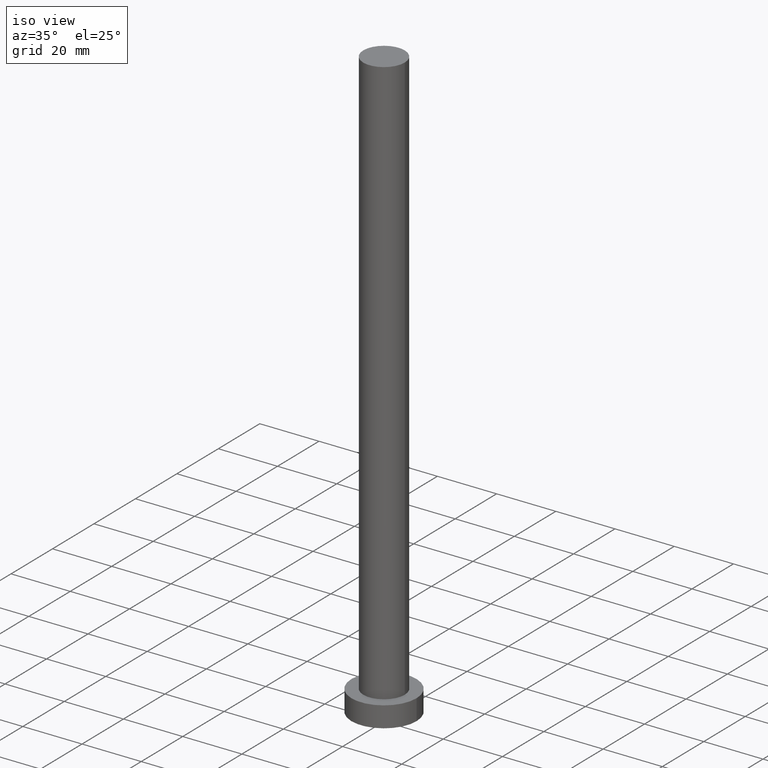
[diagram: clean part render]
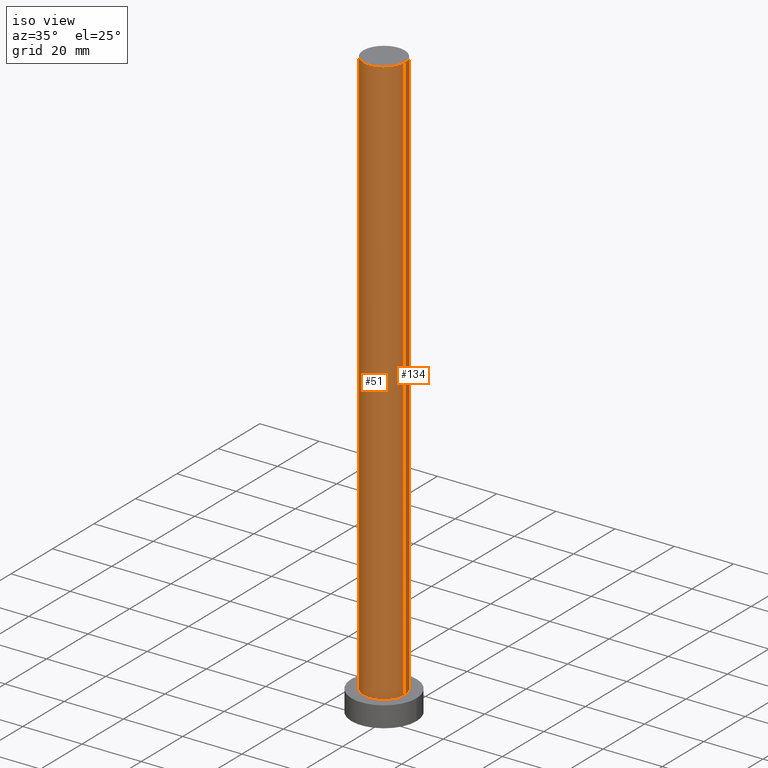
[diagram: same view with one multi-face feature highlighted, each face labeled with its STEP entity id]
A machine part, iso view. The highlighted faces form ONE feature: a constant-radius fillet chain: 2 tangent blend faces with common blend radius 7 mm. The faces share edges in the B-rep.
Their STEP definitions:
[1] entity #51 (Cylinder):
#2 = EDGE_CURVE ( 'NONE', #127, #113, #91, .T. ) ;
#7 = CARTESIAN_POINT ( 'NONE',  ( 0.000000000000000000, 0.000000000000000000, 200.0000000000000000 ) ) ;
#8 = VERTEX_POINT ( 'NONE', #11 ) ;
#11 = CARTESIAN_POINT ( 'NONE',  ( 7.000000000000000000, 8.572527594031473190E-16, 7.000000000000000000 ) ) ;
#16 = VECTOR ( 'NONE', #152, 1000.000000000000000 ) ;
#30 = DIRECTION ( 'NONE',  ( 1.000000000000000000, 0.000000000000000000, 0.000000000000000000 ) ) ;
#48 = ORIENTED_EDGE ( 'NONE', *, *, #153, .T. ) ;
#50 = VECTOR ( 'NONE', #132, 1000.000000000000000 ) ;
#51 = ADVANCED_FACE ( 'NONE', ( #58 ), #101, .T. ) ;
#52 = CIRCLE ( 'NONE', #95, 7.000000000000000000 ) ;
#58 = FACE_OUTER_BOUND ( 'NONE', #98, .T. ) ;
#69 = ORIENTED_EDGE ( 'NONE', *, *, #2, .T. ) ;
#71 = ORIENTED_EDGE ( 'NONE', *, *, #167, .F. ) ;
#83 = CARTESIAN_POINT ( 'NONE',  ( -7.000000000000000000, 0.000000000000000000, 7.000000000000000000 ) ) ;
#88 = LINE ( 'NONE', #207, #16 ) ;
#91 = LINE ( 'NONE', #188, #50 ) ;
#94 = CARTESIAN_POINT ( 'NONE',  ( 7.000000000000000000, 8.572527594031473190E-16, 200.0000000000000000 ) ) ;
#95 = AXIS2_PLACEMENT_3D ( 'NONE', #128, #209, #30 ) ;
#98 = EDGE_LOOP ( 'NONE', ( #136, #71, #69, #48 ) ) ;
#101 = CYLINDRICAL_SURFACE ( 'NONE', #182, 7.000000000000000000 ) ;
#103 = DIRECTION ( 'NONE',  ( 1.000000000000000000, 0.000000000000000000, 0.000000000000000000 ) ) ;
#113 = VERTEX_POINT ( 'NONE', #83 ) ;
#115 = AXIS2_PLACEMENT_3D ( 'NONE', #123, #201, #103 ) ;
#123 = CARTESIAN_POINT ( 'NONE',  ( 0.000000000000000000, 0.000000000000000000, 7.000000000000000000 ) ) ;
#127 = VERTEX_POINT ( 'NONE', #168 ) ;
#128 = CARTESIAN_POINT ( 'NONE',  ( 0.000000000000000000, 0.000000000000000000, 200.0000000000000000 ) ) ;
#132 = DIRECTION ( 'NONE',  ( -0.000000000000000000, -0.000000000000000000, -1.000000000000000000 ) ) ;
#136 = ORIENTED_EDGE ( 'NONE', *, *, #225, .F. ) ;
#152 = DIRECTION ( 'NONE',  ( -0.000000000000000000, -0.000000000000000000, -1.000000000000000000 ) ) ;
#153 = EDGE_CURVE ( 'NONE', #113, #8, #217, .T. ) ;
#167 = EDGE_CURVE ( 'NONE', #127, #245, #52, .T. ) ;
#168 = CARTESIAN_POINT ( 'NONE',  ( -7.000000000000000000, 0.000000000000000000, 200.0000000000000000 ) ) ;
#182 = AXIS2_PLACEMENT_3D ( 'NONE', #7, #198, #222 ) ;
#188 = CARTESIAN_POINT ( 'NONE',  ( -7.000000000000000000, 0.000000000000000000, 200.0000000000000000 ) ) ;
#198 = DIRECTION ( 'NONE',  ( -0.000000000000000000, -0.000000000000000000, -1.000000000000000000 ) ) ;
#201 = DIRECTION ( 'NONE',  ( 0.000000000000000000, 0.000000000000000000, 1.000000000000000000 ) ) ;
#207 = CARTESIAN_POINT ( 'NONE',  ( 7.000000000000000000, 8.572527594031473190E-16, 200.0000000000000000 ) ) ;
#209 = DIRECTION ( 'NONE',  ( 0.000000000000000000, 0.000000000000000000, 1.000000000000000000 ) ) ;
#217 = CIRCLE ( 'NONE', #115, 7.000000000000000000 ) ;
#222 = DIRECTION ( 'NONE',  ( -1.000000000000000000, 0.000000000000000000, 0.000000000000000000 ) ) ;
#225 = EDGE_CURVE ( 'NONE', #245, #8, #88, .T. ) ;
#245 = VERTEX_POINT ( 'NONE', #94 ) ;
[2] entity #134 (Cylinder):
#2 = EDGE_CURVE ( 'NONE', #127, #113, #91, .T. ) ;
#8 = VERTEX_POINT ( 'NONE', #11 ) ;
#10 = CIRCLE ( 'NONE', #223, 7.000000000000000000 ) ;
#11 = CARTESIAN_POINT ( 'NONE',  ( 7.000000000000000000, 8.572527594031473190E-16, 7.000000000000000000 ) ) ;
#15 = ORIENTED_EDGE ( 'NONE', *, *, #171, .F. ) ;
#16 = VECTOR ( 'NONE', #152, 1000.000000000000000 ) ;
#28 = DIRECTION ( 'NONE',  ( 0.000000000000000000, 0.000000000000000000, 1.000000000000000000 ) ) ;
#35 = CARTESIAN_POINT ( 'NONE',  ( 0.000000000000000000, 0.000000000000000000, 200.0000000000000000 ) ) ;
#42 = DIRECTION ( 'NONE',  ( -1.000000000000000000, 0.000000000000000000, 0.000000000000000000 ) ) ;
#50 = VECTOR ( 'NONE', #132, 1000.000000000000000 ) ;
#60 = DIRECTION ( 'NONE',  ( 1.000000000000000000, 0.000000000000000000, 0.000000000000000000 ) ) ;
#62 = FACE_OUTER_BOUND ( 'NONE', #120, .T. ) ;
#63 = CYLINDRICAL_SURFACE ( 'NONE', #149, 7.000000000000000000 ) ;
#68 = ORIENTED_EDGE ( 'NONE', *, *, #225, .T. ) ;
#83 = CARTESIAN_POINT ( 'NONE',  ( -7.000000000000000000, 0.000000000000000000, 7.000000000000000000 ) ) ;
#88 = LINE ( 'NONE', #207, #16 ) ;
#91 = LINE ( 'NONE', #188, #50 ) ;
#92 = DIRECTION ( 'NONE',  ( 1.000000000000000000, 0.000000000000000000, 0.000000000000000000 ) ) ;
#94 = CARTESIAN_POINT ( 'NONE',  ( 7.000000000000000000, 8.572527594031473190E-16, 200.0000000000000000 ) ) ;
#113 = VERTEX_POINT ( 'NONE', #83 ) ;
#116 = EDGE_CURVE ( 'NONE', #8, #113, #208, .T. ) ;
#120 = EDGE_LOOP ( 'NONE', ( #15, #68, #150, #159 ) ) ;
#127 = VERTEX_POINT ( 'NONE', #168 ) ;
#132 = DIRECTION ( 'NONE',  ( -0.000000000000000000, -0.000000000000000000, -1.000000000000000000 ) ) ;
#134 = ADVANCED_FACE ( 'NONE', ( #62 ), #63, .T. ) ;
#142 = DIRECTION ( 'NONE',  ( -0.000000000000000000, -0.000000000000000000, -1.000000000000000000 ) ) ;
#143 = CARTESIAN_POINT ( 'NONE',  ( 0.000000000000000000, 0.000000000000000000, 200.0000000000000000 ) ) ;
#149 = AXIS2_PLACEMENT_3D ( 'NONE', #143, #142, #42 ) ;
#150 = ORIENTED_EDGE ( 'NONE', *, *, #116, .T. ) ;
#152 = DIRECTION ( 'NONE',  ( -0.000000000000000000, -0.000000000000000000, -1.000000000000000000 ) ) ;
#154 = DIRECTION ( 'NONE',  ( 0.000000000000000000, 0.000000000000000000, 1.000000000000000000 ) ) ;
#159 = ORIENTED_EDGE ( 'NONE', *, *, #2, .F. ) ;
#168 = CARTESIAN_POINT ( 'NONE',  ( -7.000000000000000000, 0.000000000000000000, 200.0000000000000000 ) ) ;
#171 = EDGE_CURVE ( 'NONE', #245, #127, #10, .T. ) ;
#188 = CARTESIAN_POINT ( 'NONE',  ( -7.000000000000000000, 0.000000000000000000, 200.0000000000000000 ) ) ;
#194 = AXIS2_PLACEMENT_3D ( 'NONE', #242, #28, #60 ) ;
#207 = CARTESIAN_POINT ( 'NONE',  ( 7.000000000000000000, 8.572527594031473190E-16, 200.0000000000000000 ) ) ;
#208 = CIRCLE ( 'NONE', #194, 7.000000000000000000 ) ;
#223 = AXIS2_PLACEMENT_3D ( 'NONE', #35, #154, #92 ) ;
#225 = EDGE_CURVE ( 'NONE', #245, #8, #88, .T. ) ;
#242 = CARTESIAN_POINT ( 'NONE',  ( 0.000000000000000000, 0.000000000000000000, 7.000000000000000000 ) ) ;
#245 = VERTEX_POINT ( 'NONE', #94 ) ;